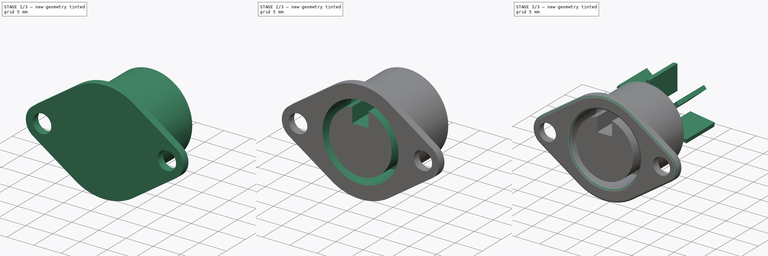
[diagram: build sequence overview — one tinted view per stage of 3, left to right]
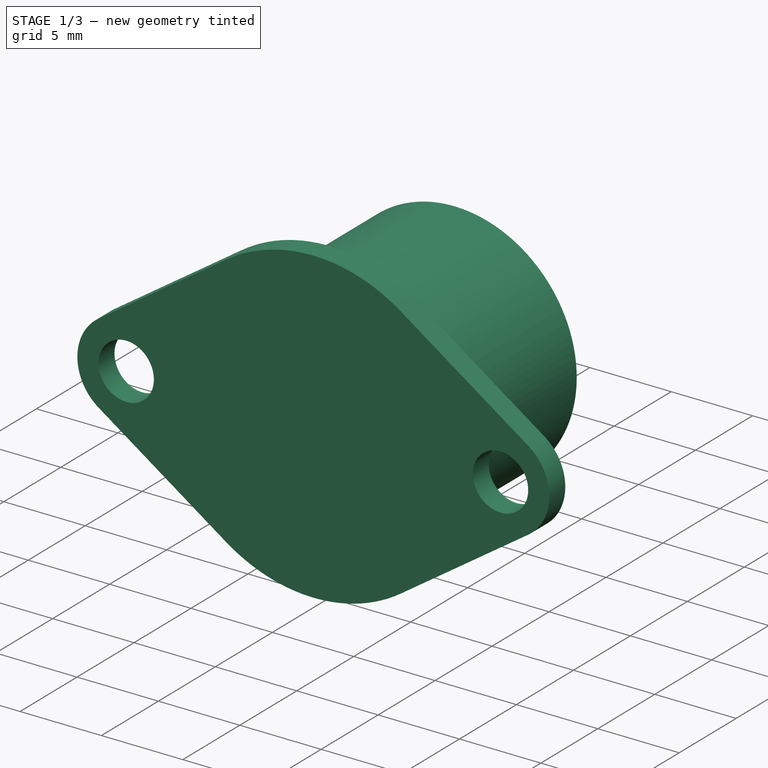
[diagram: stage 1 of 3 — iso view after this stage's code; geometry added in this stage tinted green]
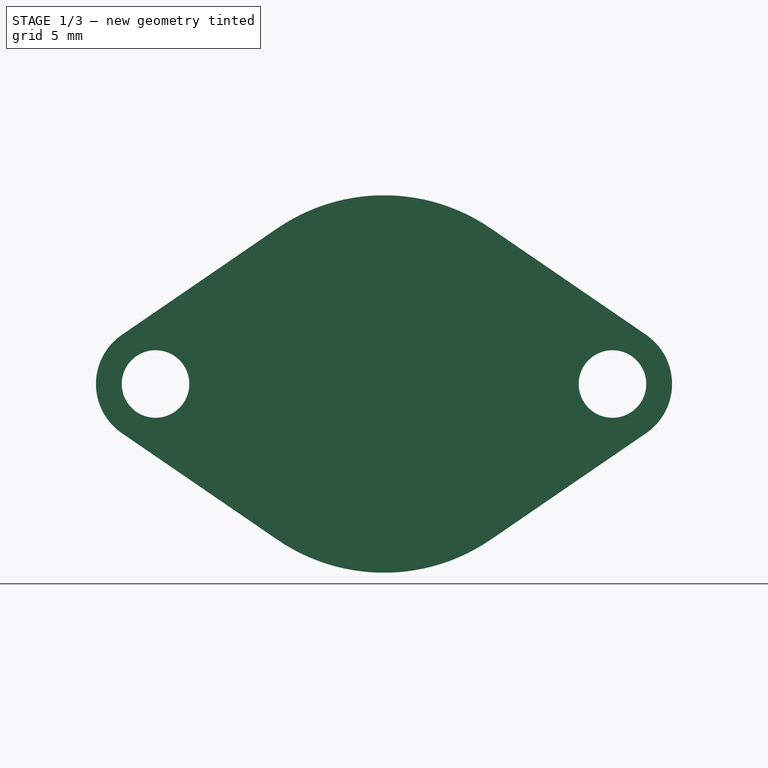
[diagram: stage 1 of 3 — front view after this stage's code; geometry added in this stage tinted green]
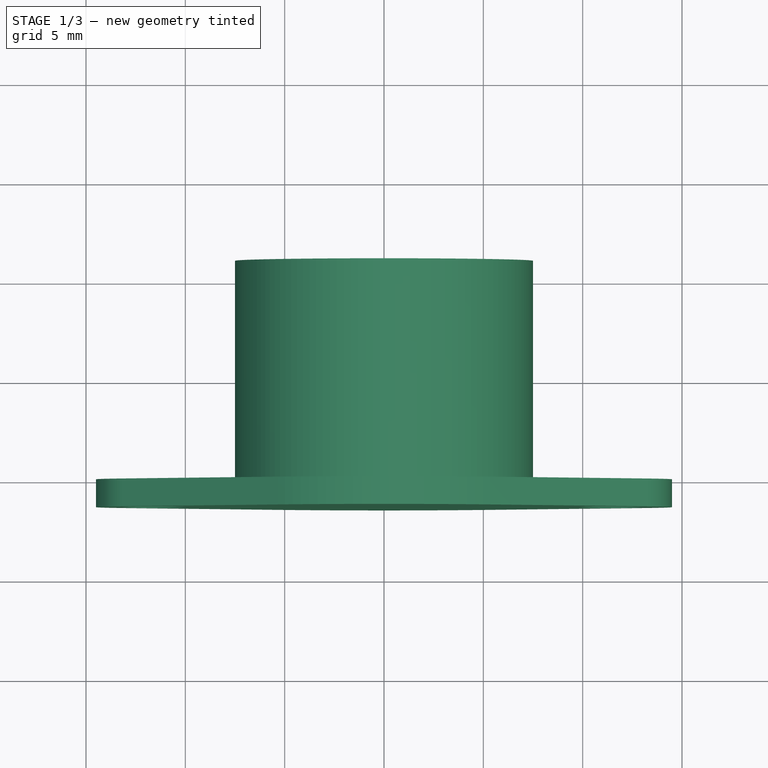
[diagram: stage 1 of 3 — top view after this stage's code; geometry added in this stage tinted green]
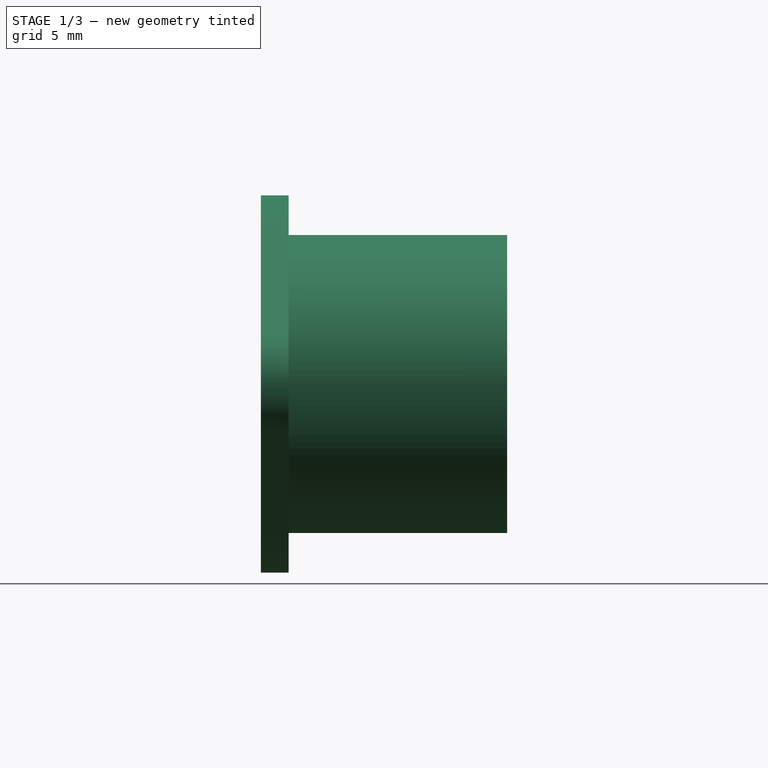
[diagram: stage 1 of 3 — right view after this stage's code; geometry added in this stage tinted green]
FCSTD DOCUMENT  (FreeCAD 0.18R15619 (Git))
Label: midi-socket
License: All rights reserved
LicenseURL: http://en.wikipedia.org/wiki/All_rights_reserved
objects: Sketcher::SketchObject×4, PartDesign::Pad×3, PartDesign::Pocket×1, PartDesign::Fillet×1, PartDesign::Body×1
note: 14 computed .brp shape members not serialized (recipe doc carries the construction recipe); baked Part::Feature solids carry a one-line shape summary decoded from their .brp

FEATURE [Sketcher::SketchObject] Sketch
  MapMode = 5
  Placement = pos=(0,0,0) rot=(1,0,0;1.5708rad)
  Support = -> [XZ_Plane]
  sketch-geometry (23):
    g0: Circle [constr] CenterX=0 CenterY=0 CenterZ=0 NormalX=0 NormalY=0 NormalZ=1 AngleXU=0 Radius=9.5
    g1: Circle [constr] CenterX=11.5 CenterY=0 CenterZ=0 NormalX=0 NormalY=0 NormalZ=1 AngleXU=0 Radius=3
    g2: Circle [constr] CenterX=-11.5 CenterY=0 CenterZ=0 NormalX=0 NormalY=0 NormalZ=1 AngleXU=0 Radius=3
    g3: LineSegment [constr] StartX=-14.5 StartY=0 StartZ=0 EndX=0 EndY=0 EndZ=0
    g4: LineSegment [constr] StartX=0 StartY=0 StartZ=0 EndX=14.5 EndY=0 EndZ=0
    g5: LineSegment StartX=5.36957 StartY=7.83695 StartZ=0 EndX=13.1957 EndY=2.47483 EndZ=0
    g6: LineSegment StartX=13.1957 StartY=-2.47483 StartZ=0 EndX=5.36957 EndY=-7.83695 EndZ=0
    g7: LineSegment StartX=-5.36957 StartY=-7.83695 StartZ=0 EndX=-13.1957 EndY=-2.47483 EndZ=0
    g8: LineSegment StartX=-13.1957 StartY=2.47483 StartZ=0 EndX=-5.36957 EndY=7.83695 EndZ=0
    g9: LineSegment [constr] StartX=0 StartY=0 StartZ=0 EndX=5.36957 EndY=7.83695 EndZ=0
    g10: LineSegment [constr] StartX=0 StartY=0 StartZ=0 EndX=5.36957 EndY=-7.83695 EndZ=0
    g11: LineSegment [constr] StartX=0 StartY=0 StartZ=0 EndX=-5.36957 EndY=-7.83695 EndZ=0
    g12: LineSegment [constr] StartX=0 StartY=0 StartZ=0 EndX=-5.36957 EndY=7.83695 EndZ=0
    g13: LineSegment [constr] StartX=11.5 StartY=0 StartZ=0 EndX=13.1957 EndY=2.47483 EndZ=0
    g14: LineSegment [constr] StartX=11.5 StartY=0 StartZ=0 EndX=13.1957 EndY=-2.47483 EndZ=0
    g15: LineSegment [constr] StartX=-11.5 StartY=0 StartZ=0 EndX=-13.1957 EndY=-2.47483 EndZ=0
    g16: LineSegment [constr] StartX=-11.5 StartY=0 StartZ=0 EndX=-13.1957 EndY=2.47483 EndZ=0
    g17: ArcOfCircle CenterX=0 CenterY=0 CenterZ=0 NormalX=0 NormalY=0 NormalZ=1 AngleXU=0 Radius=9.5 StartAngle=0.9701 EndAngle=2.17149
    g18: ArcOfCircle CenterX=0 CenterY=0 CenterZ=0 NormalX=0 NormalY=0 NormalZ=1 AngleXU=0 Radius=9.5 StartAngle=4.11169 EndAngle=5.31309
    g19: ArcOfCircle CenterX=-11.5 CenterY=0 CenterZ=0 NormalX=0 NormalY=0 NormalZ=1 AngleXU=0 Radius=3 StartAngle=2.17149 EndAngle=4.11169
    g20: ArcOfCircle CenterX=11.5 CenterY=0 CenterZ=0 NormalX=0 NormalY=0 NormalZ=1 AngleXU=0 Radius=3 StartAngle=5.31309 EndAngle=7.25328
    g21: Circle CenterX=11.5 CenterY=0 CenterZ=0 NormalX=0 NormalY=0 NormalZ=1 AngleXU=0 Radius=1.7
    g22: Circle CenterX=-11.5 CenterY=0 CenterZ=0 NormalX=0 NormalY=0 NormalZ=1 AngleXU=0 Radius=1.7
  constraints (62):
    c: Coincident(g0,g-1)
    c: PointOnObject(g1,g-1)
    c: PointOnObject(g2,g-1)
    c: Radius(g0) = 9.5
    c: Horizontal(g3)
    c: Distance(g3) = 14.5
    c: Coincident(g4,g3)
    c: Horizontal(g4)
    c: Equal(g3,g4)
    c: Coincident(g3,g-1)
    c: PointOnObject(g3,g2)
    c: PointOnObject(g4,g1)
    c: Equal(g1,g2)
    c: Coincident(g5,g9)
    c: Coincident(g8,g12)
    c: Coincident(g7,g11)
    c: Coincident(g6,g10)
    c: Coincident(g0,g9)
    c: Coincident(g0,g10)
    c: Coincident(g0,g11)
    c: Coincident(g0,g12)
    c: PointOnObject(g5,g0)
    c: PointOnObject(g8,g0)
    c: PointOnObject(g6,g0)
    c: PointOnObject(g7,g0)
    c: Perpendicular(g11,g7)
    c: Perpendicular(g6,g10)
    c: Perpendicular(g5,g9)
    c: Perpendicular(g8,g12)
    c: Coincident(g2,g16)
    c: Coincident(g2,g15)
    c: Coincident(g13,g1)
    c: Coincident(g13,g14)
    c: Coincident(g13,g5)
    c: Coincident(g14,g6)
    c: Coincident(g15,g7)
    c: Coincident(g16,g8)
    c: PointOnObject(g5,g1)
    c: PointOnObject(g6,g1)
    c: PointOnObject(g7,g2)
    c: PointOnObject(g8,g2)
    c: Perpendicular(g16,g8)
    c: Perpendicular(g7,g15)
    c: Perpendicular(g6,g14)
    c: Perpendicular(g5,g13)
    c: Coincident(g17,g-1)
    c: Coincident(g17,g8)
    c: Coincident(g18,g17)
    c: Coincident(g18,g7)
    c: PointOnObject(g17,g9)
    c: PointOnObject(g18,g10)
    c: Coincident(g19,g2)
    c: Coincident(g19,g8)
    c: PointOnObject(g19,g15)
    c: Coincident(g20,g1)
    c: Coincident(g20,g5)
    c: PointOnObject(g20,g14)
    c: Radius(g22) = 1.7
    c: Equal(g22,g21)
    c: Coincident(g22,g19)
    c: Coincident(g21,g20)
    c: DistanceX(g19,g20) = 23
FEATURE [PartDesign::Pad] Pad
  Length = 1.4
  Length2 = 100
  Placement = pos=(0,0,0) rot=(1,0,0;1.5708rad)
  Profile = -> Sketch
  Type = 0
FEATURE [Sketcher::SketchObject] Sketch001
  MapMode = 5
  Placement = pos=(0,0,0) rot=(1,0,0;1.5708rad)
  Support = -> [XZ_Plane]
  sketch-geometry (1):
    g0: Circle CenterX=0 CenterY=0 CenterZ=0 NormalX=0 NormalY=0 NormalZ=1 AngleXU=0 Radius=7.5
  constraints (2):
    c: Coincident(g0,g-1)
    c: Radius(g0) = 7.5
FEATURE [PartDesign::Pad] Pad001
  BaseFeature = -> Pad
  Length = 11
  Length2 = 100
  Placement = pos=(0,0,0) rot=(1,0,0;1.5708rad)
  Profile = -> Sketch001
  Reversed = true
  Type = 0
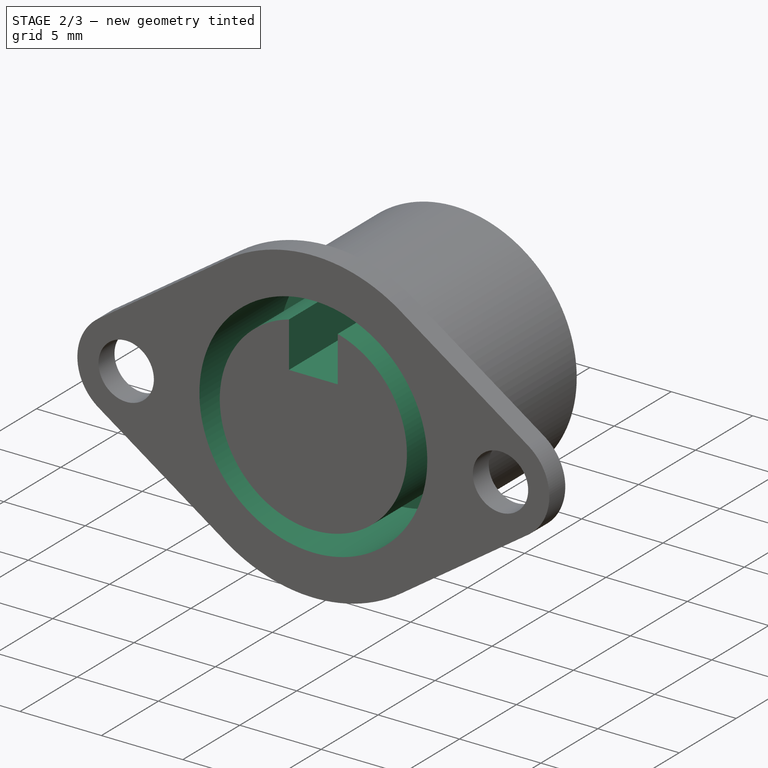
[diagram: stage 2 of 3 — iso view after this stage's code; geometry added in this stage tinted green]
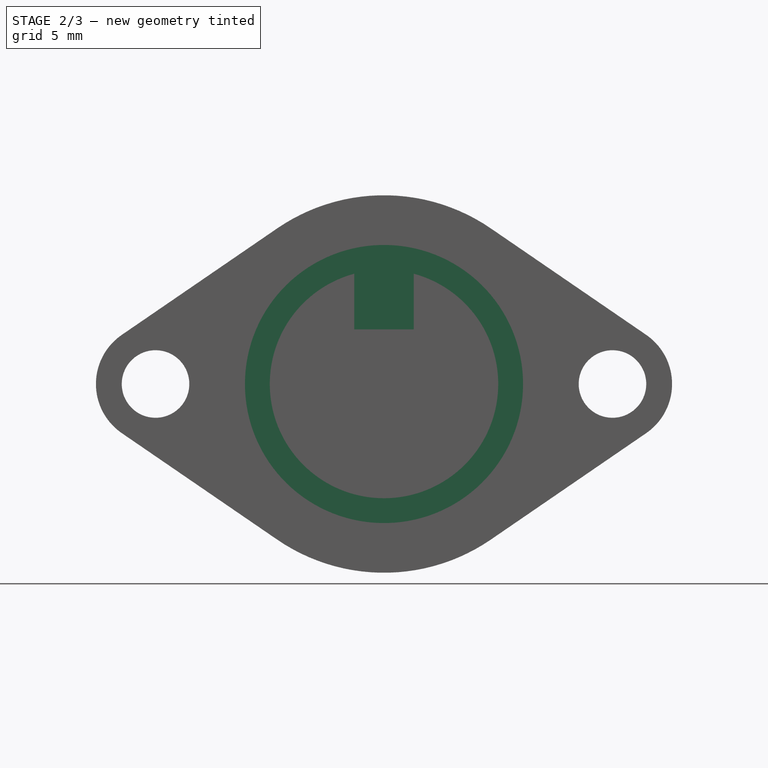
[diagram: stage 2 of 3 — front view after this stage's code; geometry added in this stage tinted green]
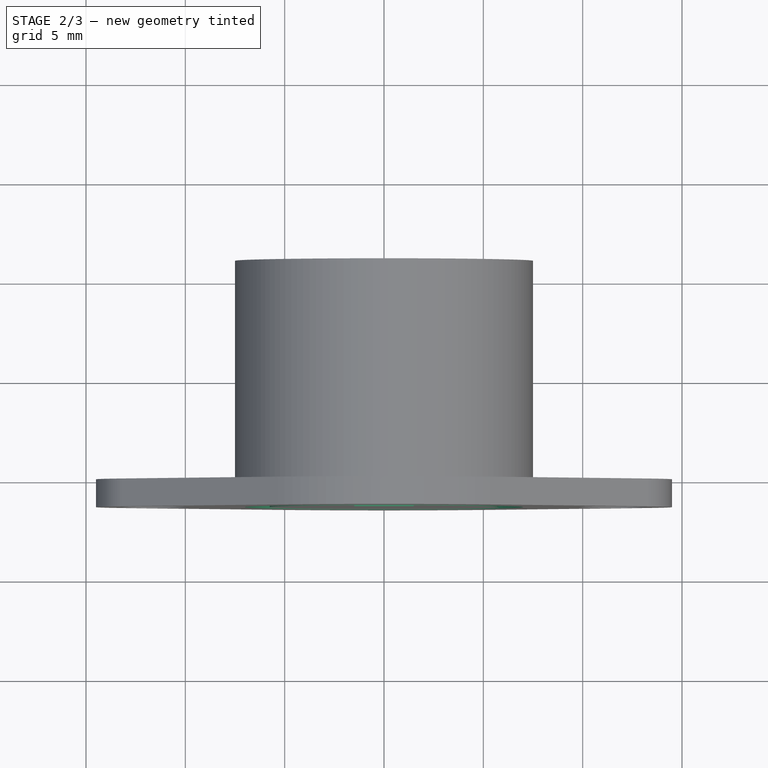
[diagram: stage 2 of 3 — top view after this stage's code; geometry added in this stage tinted green]
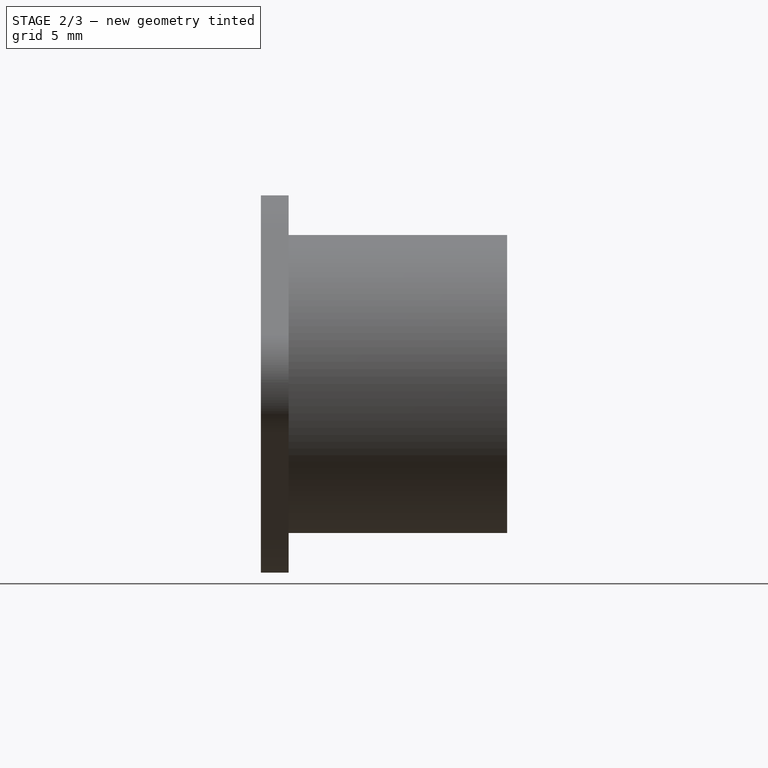
[diagram: stage 2 of 3 — right view after this stage's code; geometry added in this stage tinted green]
FEATURE [Sketcher::SketchObject] Sketch002
  MapMode = 5
  Placement = pos=(0,-1.4,6e-16) rot=(1,0,0;1.5708rad)
  Support = -> [Pad001]
  sketch-geometry (7):
    g0: Circle CenterX=0 CenterY=0 CenterZ=0 NormalX=0 NormalY=0 NormalZ=1 AngleXU=0 Radius=7
    g1: Circle [constr] CenterX=0 CenterY=0 CenterZ=0 NormalX=0 NormalY=0 NormalZ=1 AngleXU=0 Radius=5.75
    g2: ArcOfCircle CenterX=0 CenterY=0 CenterZ=0 NormalX=0 NormalY=0 NormalZ=1 AngleXU=0 Radius=5.75 StartAngle=1.83472 EndAngle=7.59006
    g3: LineSegment StartX=1.5 StartY=5.5509 StartZ=0 EndX=1.5 EndY=2.75 EndZ=0
    g4: LineSegment StartX=1.5 StartY=2.75 StartZ=0 EndX=-1.5 EndY=2.75 EndZ=0
    g5: LineSegment StartX=-1.5 StartY=2.75 StartZ=0 EndX=-1.5 EndY=5.5509 EndZ=0
    g6: LineSegment [constr] StartX=0 StartY=5.75 StartZ=0 EndX=0 EndY=2.75 EndZ=0
  constraints (20):
    c: Coincident(g3,g4)
    c: Coincident(g4,g5)
    c: Coincident(g5,g2)
    c: Coincident(g3,g2)
    c: Vertical(g3)
    c: Vertical(g5)
    c: Horizontal(g4)
    c: Coincident(g0,g1)
    c: Coincident(g0,g2)
    c: Coincident(g0,g-1)
    c: PointOnObject(g2,g1)
    c: Radius(g2) = 5.75
    c: Radius(g0) = 7
    c: DistanceX(g-2,g3) = 1.5
    c: DistanceX(g-2,g4) = -1.5
    c: PointOnObject(g6,g1)
    c: PointOnObject(g6,g-2)
    c: PointOnObject(g6,g4)
    c: Vertical(g6)
    c: Distance(g6) = 3
FEATURE [PartDesign::Pocket] Pocket
  BaseFeature = -> Pad001
  Length = 7
  Length2 = 100
  Placement = pos=(0,0,0) rot=(1,0,0;1.5708rad)
  Profile = -> Sketch002
  Type = 0
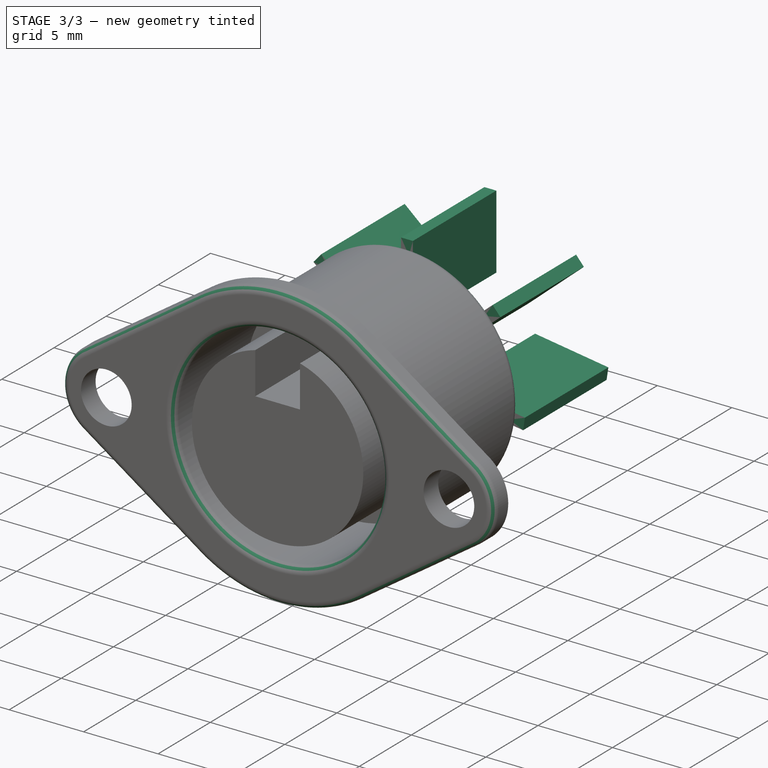
[diagram: stage 3 of 3 — iso view after this stage's code; geometry added in this stage tinted green]
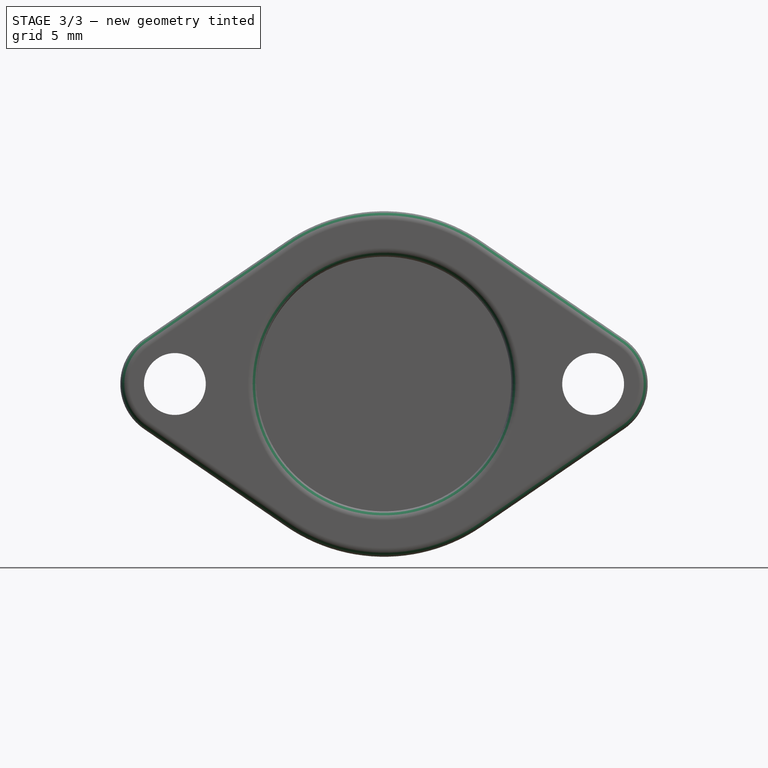
[diagram: stage 3 of 3 — front view after this stage's code; geometry added in this stage tinted green]
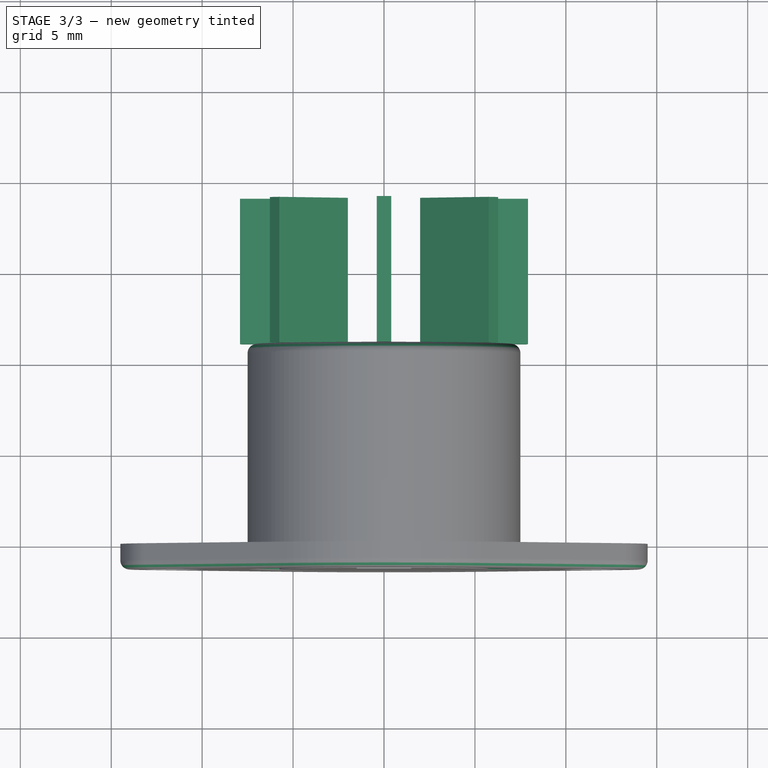
[diagram: stage 3 of 3 — top view after this stage's code; geometry added in this stage tinted green]
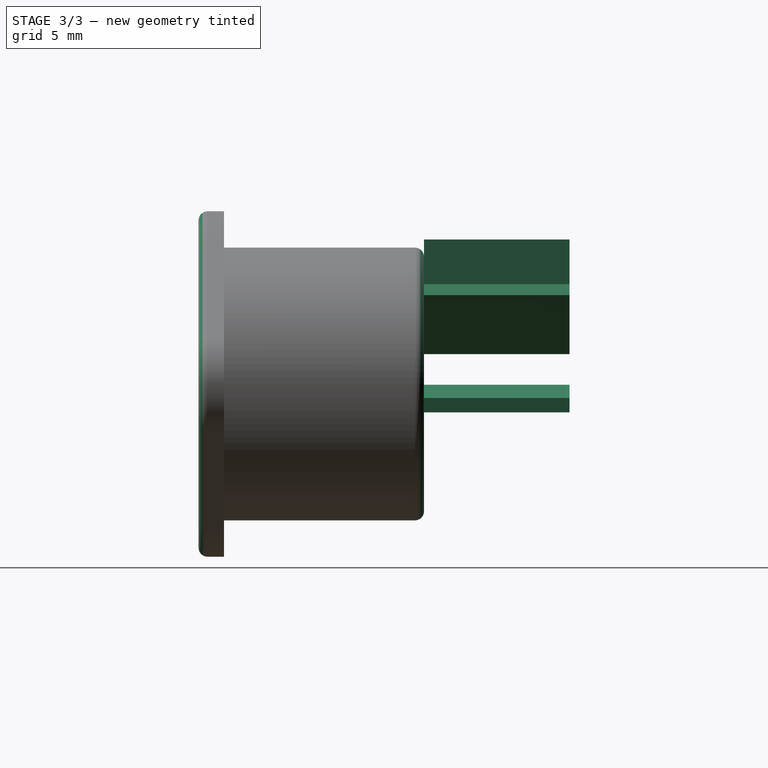
[diagram: stage 3 of 3 — right view after this stage's code; geometry added in this stage tinted green]
FEATURE [PartDesign::Fillet] Fillet
  Base = -> Pocket [Edge10,Edge4,Edge7,Edge19,Edge21,Edge23,Edge22,Edge20,Edge32,Edge25]
  BaseFeature = -> Pocket
  Placement = pos=(0,0,0) rot=(1,0,0;1.5708rad)
  Radius = 0.5
FEATURE [Sketcher::SketchObject] Sketch004
  MapMode = 5
  Placement = pos=(0,11,-4.9e-15) rot=(-1,0,0;1.5708rad)
  Support = -> [Fillet]
  sketch-geometry (31):
    g0: Circle [constr] CenterX=0 CenterY=0 CenterZ=0 NormalX=0 NormalY=0 NormalZ=1 AngleXU=0 Radius=7.95606
    g1: LineSegment [constr] StartX=0 StartY=0 StartZ=0 EndX=0 EndY=-7.95606 EndZ=0
    g2: LineSegment [constr] StartX=0 StartY=0 StartZ=0 EndX=6.02352 EndY=-5.1977 EndZ=0
    g3: LineSegment [constr] StartX=0 StartY=0 StartZ=0 EndX=7.87034 EndY=1.16473 EndZ=0
    g4: LineSegment [constr] StartX=0 StartY=0 StartZ=0 EndX=-6.02352 EndY=-5.1977 EndZ=0
    g5: LineSegment [constr] StartX=0 StartY=0 StartZ=0 EndX=-7.87034 EndY=1.16473 EndZ=0
    g6: LineSegment [constr] StartX=6.02352 StartY=-5.1977 StartZ=0 EndX=7.87034 EndY=1.16473 EndZ=0
    g7: LineSegment [constr] StartX=0 StartY=-7.95606 StartZ=0 EndX=6.02352 EndY=-5.1977 EndZ=0
    g8: LineSegment [constr] StartX=-6.02352 StartY=-5.1977 StartZ=0 EndX=0 EndY=-7.95606 EndZ=0
    g9: LineSegment [constr] StartX=-7.87034 StartY=1.16473 StartZ=0 EndX=-6.02352 EndY=-5.1977 EndZ=0
    g10: LineSegment StartX=2.99974 StartY=0.0395727 StartZ=0 EndX=7.91895 EndY=0.767563 EndZ=0
    g11: LineSegment StartX=7.80183 StartY=1.55894 StartZ=0 EndX=2.88262 EndY=0.830954 EndZ=0
    g12: LineSegment StartX=2.88262 StartY=0.830954 StartZ=0 EndX=2.99974 EndY=0.0395727 EndZ=0
    g13: LineSegment StartX=7.80183 StartY=1.55894 StartZ=0 EndX=7.91895 EndY=0.767563 EndZ=0
    g14: LineSegment StartX=2.51233 StartY=-1.63957 StartZ=0 EndX=1.98969 EndY=-2.24524 EndZ=0
    g15: LineSegment StartX=1.98969 StartY=-2.24524 StartZ=0 EndX=5.75458 EndY=-5.49397 EndZ=0
    g16: LineSegment StartX=5.75458 StartY=-5.49397 StartZ=0 EndX=6.27722 EndY=-4.88829 EndZ=0
    g17: LineSegment StartX=6.27722 StartY=-4.88829 StartZ=0 EndX=2.51233 EndY=-1.63957 EndZ=0
    g18: LineSegment StartX=0.4 StartY=-2.97321 StartZ=0 EndX=-0.4 EndY=-2.97321 EndZ=0
    g19: LineSegment StartX=-0.4 StartY=-2.97321 StartZ=0 EndX=-0.4 EndY=-7.946 EndZ=0
    g20: LineSegment StartX=-0.4 StartY=-7.946 StartZ=0 EndX=0.4 EndY=-7.946 EndZ=0
    g21: LineSegment StartX=0.4 StartY=-7.946 StartZ=0 EndX=0.4 EndY=-2.97321 EndZ=0
    g22: LineSegment StartX=-5.75458 StartY=-5.49397 StartZ=0 EndX=-6.27722 EndY=-4.88829 EndZ=0
    g23: LineSegment StartX=-6.27722 StartY=-4.88829 StartZ=0 EndX=-2.51233 EndY=-1.63957 EndZ=0
    g24: LineSegment StartX=-2.51233 StartY=-1.63957 StartZ=0 EndX=-1.98969 EndY=-2.24524 EndZ=0
    g25: LineSegment StartX=-1.98969 StartY=-2.24524 StartZ=0 EndX=-5.75458 EndY=-5.49397 EndZ=0
    g26: LineSegment StartX=-2.99974 StartY=0.0395727 StartZ=0 EndX=-7.91895 EndY=0.767563 EndZ=0
    g27: LineSegment StartX=-7.91895 StartY=0.767563 StartZ=0 EndX=-7.80183 EndY=1.55894 EndZ=0
    g28: LineSegment StartX=-7.80183 StartY=1.55894 StartZ=0 EndX=-2.88262 EndY=0.830954 EndZ=0
    g29: LineSegment StartX=-2.88262 StartY=0.830954 StartZ=0 EndX=-2.99974 EndY=0.0395727 EndZ=0
    g30: Circle [constr] CenterX=0 CenterY=0 CenterZ=0 NormalX=0 NormalY=0 NormalZ=1 AngleXU=0 Radius=3
  constraints (85):
    c: Coincident(g0,g1)
    c: Coincident(g0,g2)
    c: Coincident(g0,g3)
    c: Coincident(g0,g4)
    c: Coincident(g0,g5)
    c: Coincident(g0,g-1)
    c: PointOnObject(g5,g0)
    c: PointOnObject(g3,g0)
    c: PointOnObject(g2,g0)
    c: PointOnObject(g1,g0)
    c: PointOnObject(g4,g0)
    c: Vertical(g1)
    c: Coincident(g5,g9)
    c: Coincident(g4,g8)
    c: Coincident(g4,g9)
    c: Coincident(g1,g7)
    c: Coincident(g1,g8)
    c: Coincident(g2,g6)
    c: Coincident(g2,g7)
    c: Coincident(g3,g6)
    c: Equal(g6,g7)
    c: Equal(g7,g8)
    c: Equal(g8,g9)
    c: Coincident(g14,g15)
    c: Coincident(g15,g16)
    c: Coincident(g16,g17)
    c: Coincident(g18,g19)
    c: Coincident(g19,g20)
    c: Coincident(g20,g21)
    c: Coincident(g22,g23)
    c: Coincident(g23,g24)
    c: Coincident(g24,g25)
    c: Coincident(g26,g27)
    c: Coincident(g27,g28)
    c: Coincident(g28,g29)
    c: Coincident(g0,g30)
    c: Coincident(g11,g12)
    c: Coincident(g10,g12)
    c: Coincident(g11,g13)
    c: Coincident(g10,g13)
    c: Coincident(g14,g17)
    c: Coincident(g18,g21)
    c: Coincident(g22,g25)
    c: Coincident(g26,g29)
    c: Perpendicular(g16,g2)
    c: Perpendicular(g2,g14)
    c: PointOnObject(g14,g30)
    c: PointOnObject(g14,g30)
    c: PointOnObject(g15,g0)
    c: PointOnObject(g16,g0)
    c: Parallel(g17,g15)
    c: PointOnObject(g11,g30)
    c: PointOnObject(g10,g30)
    c: PointOnObject(g11,g0)
    c: PointOnObject(g10,g0)
    c: Perpendicular(g3,g13)
    c: Parallel(g10,g11)
    c: Perpendicular(g3,g12)
    c: Equal(g14,g12)
    c: Perpendicular(g1,g18)
    c: Perpendicular(g1,g20)
    c: Parallel(g19,g21)
    c: PointOnObject(g18,g30)
    c: PointOnObject(g18,g30)
    c: PointOnObject(g20,g0)
    c: PointOnObject(g19,g0)
    c: Parallel(g25,g23)
    c: Perpendicular(g4,g24)
    c: Perpendicular(g4,g22)
    c: PointOnObject(g23,g30)
    c: PointOnObject(g24,g30)
    c: PointOnObject(g22,g0)
    c: PointOnObject(g22,g0)
    c: Equal(g14,g18)
    c: Equal(g18,g24)
    c: Perpendicular(g5,g29)
    c: Perpendicular(g5,g27)
    c: Parallel(g26,g28)
    c: PointOnObject(g26,g30)
    c: PointOnObject(g28,g30)
    c: PointOnObject(g26,g0)
    c: PointOnObject(g27,g0)
    c: Equal(g29,g24)
    c: Radius(g30) = 3
    c: Distance(g12) = 0.8
FEATURE [PartDesign::Pad] Pad002
  BaseFeature = -> Fillet
  Length = 8
  Length2 = 100
  Placement = pos=(0,0,0) rot=(1,0,0;1.5708rad)
  Profile = -> Sketch004
  Type = 0
FEATURE [PartDesign::Body] Body
  Group = -> [Sketch,Pad,Sketch001,Pad001,Sketch002,Pocket,Fillet,Sketch004,Pad002]
  Origin = -> Origin
  Tip = -> Pad002
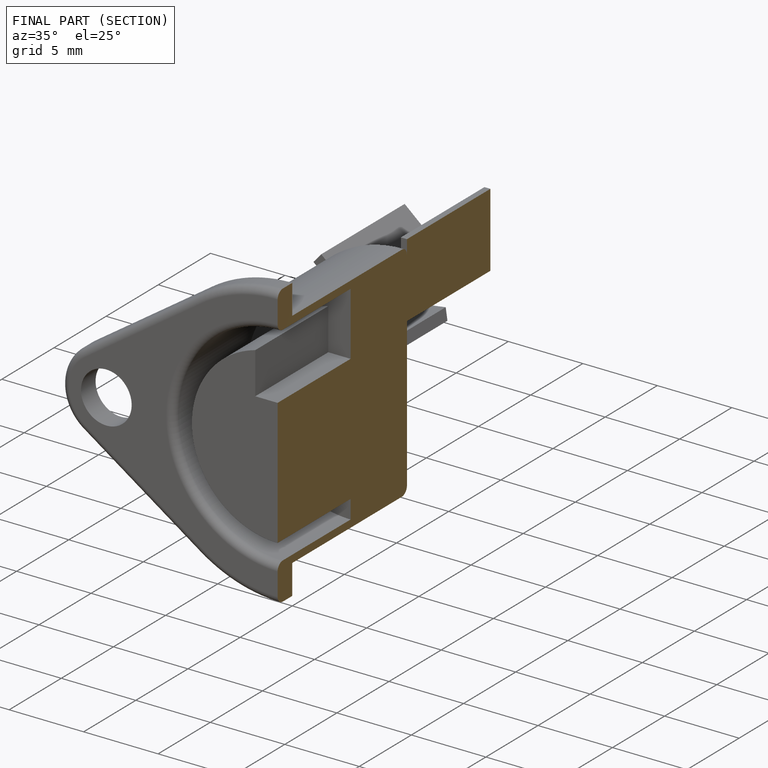
[diagram: finished part — half-section view (interior)]
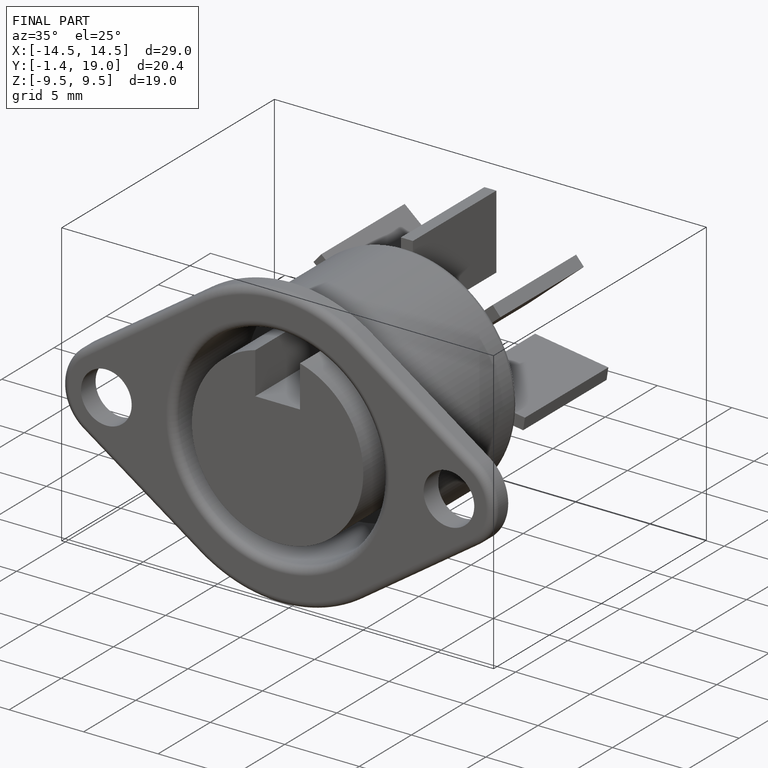
[diagram: finished part — iso view with bounding-box wireframe]
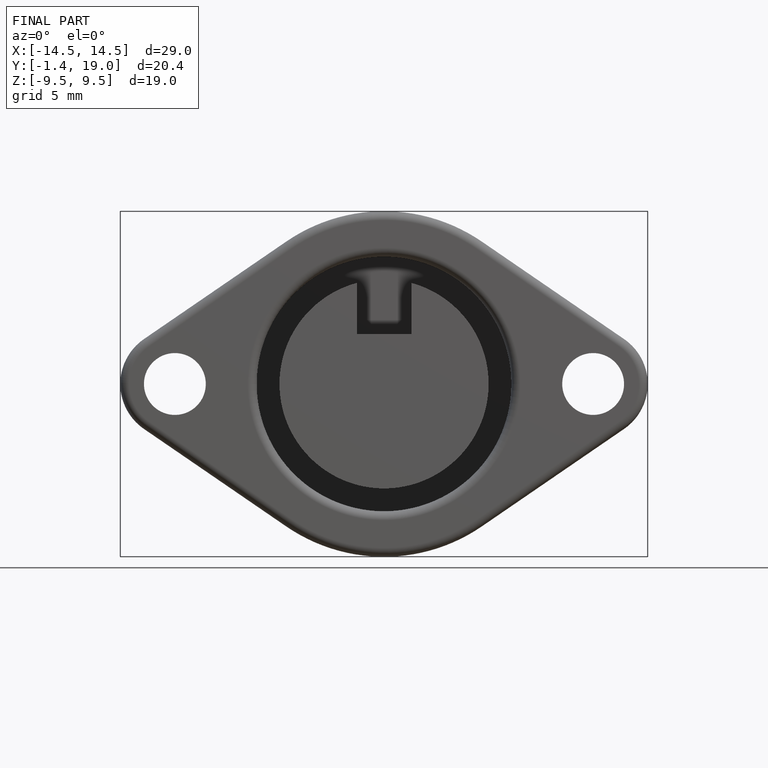
[diagram: finished part — front view with bounding-box wireframe]
